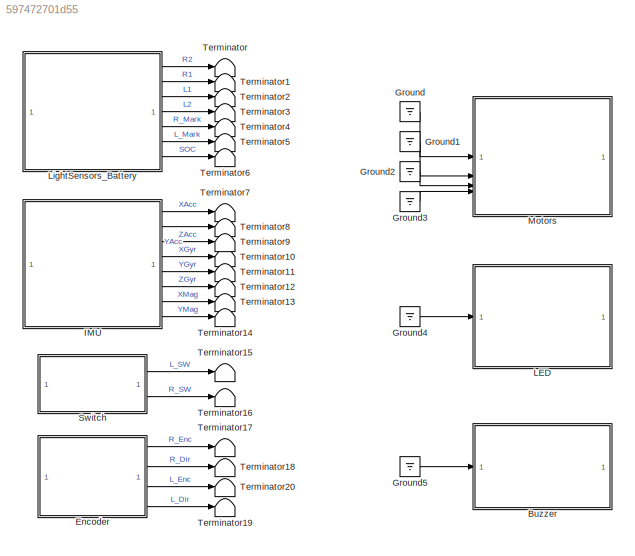
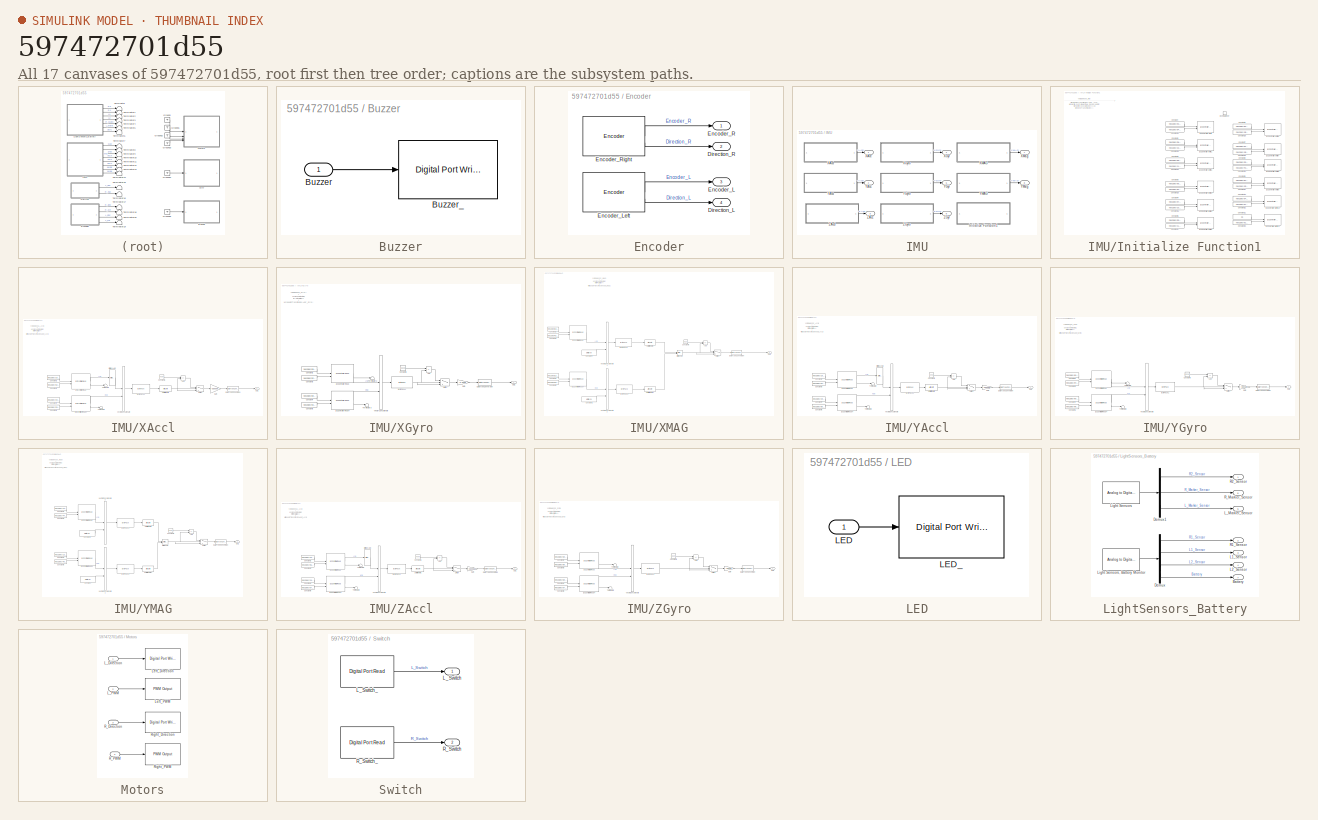
[diagram: thumbnail index - all 17 canvases of the model, root first then tree order]
MODEL slx_597472701d55
KIND model
CONFIG AbsTol = auto
CONFIG EnableMultiTasking = on
CONFIG FixedStep = auto
CONFIG MaxStep = auto
CONFIG MinStep = auto
CONFIG RelTol = 1e-3
CONFIG SampleTimeConstraint = Unconstrained
CONFIG SolverName = FixedStepAuto
CONFIG StartTime = 0.0
CONFIG StopTime = inf
BLOCK [SubSystem] Buzzer
BLOCK [Inport] Buzzer/Buzzer
BLOCK [Reference] Buzzer/Buzzer_  REF=stm32f4xxblockslib/Digital Port Write
  LibrarySourceBlock = stm32f3xxblockslib/Digital Port Write
  SourceBlock = stm32f4xxblockslib/Digital Port Write
  SourceType = stm32cube.blocks.DigitalPortWrite
BLOCK [SubSystem] Encoder
BLOCK [Outport] Encoder/Direction_L
  Port = 4
BLOCK [Outport] Encoder/Direction_R
  Port = 2
BLOCK [Outport] Encoder/Encoder_L
  Port = 3
BLOCK [Reference] Encoder/Encoder_Left  REF=stm32blockslib/Encoder
  LibrarySourceBlock = stm32f3xxblockslib/Encoder
  SourceBlock = stm32blockslib/Encoder
  SourceType = stm32cube.blocks.EncoderBlock
BLOCK [Outport] Encoder/Encoder_R
BLOCK [Reference] Encoder/Encoder_Right  REF=stm32blockslib/Encoder
  LibrarySourceBlock = stm32f3xxblockslib/Encoder
  SourceBlock = stm32blockslib/Encoder
  SourceType = stm32cube.blocks.EncoderBlock
BLOCK [Ground] Ground
BLOCK [Ground] Ground1
BLOCK [Ground] Ground2
BLOCK [Ground] Ground3
BLOCK [Ground] Ground4
BLOCK [Ground] Ground5
BLOCK [SubSystem] IMU
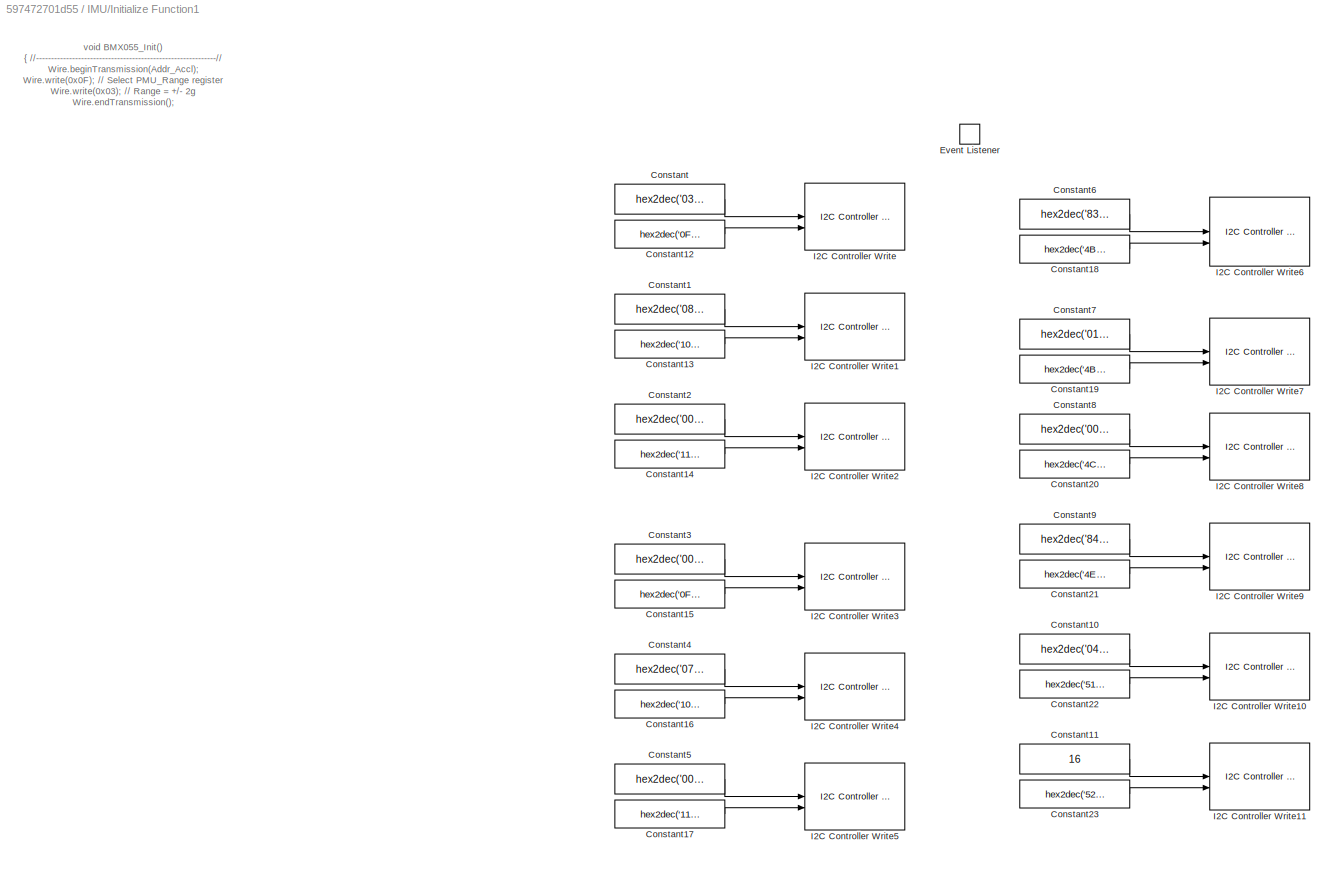
BLOCK [SubSystem] IMU/Initialize Function1
  TreatAsAtomicUnit = on
BLOCK [Constant] IMU/Initialize Function1/Constant
  OutDataTypeStr = uint8
  Value = hex2dec('03')
  VectorParams1D = off
BLOCK [Constant] IMU/Initialize Function1/Constant1
  OutDataTypeStr = uint8
  Value = hex2dec('08')
  VectorParams1D = off
BLOCK [Constant] IMU/Initialize Function1/Constant10
  OutDataTypeStr = uint8
  Value = hex2dec('04')
  VectorParams1D = off
BLOCK [Constant] IMU/Initialize Function1/Constant11
  OutDataTypeStr = uint8
  Value = 16
  VectorParams1D = off
BLOCK [Constant] IMU/Initialize Function1/Constant12
  OutDataTypeStr = uint8
  Value = hex2dec('0F')
BLOCK [Constant] IMU/Initialize Function1/Constant13
  OutDataTypeStr = uint8
  Value = hex2dec('10')
BLOCK [Constant] IMU/Initialize Function1/Constant14
  OutDataTypeStr = uint8
  Value = hex2dec('11')
BLOCK [Constant] IMU/Initialize Function1/Constant15
  OutDataTypeStr = uint8
  Value = hex2dec('0F')
BLOCK [Constant] IMU/Initialize Function1/Constant16
  OutDataTypeStr = uint8
  Value = hex2dec('10')
BLOCK [Constant] IMU/Initialize Function1/Constant17
  OutDataTypeStr = uint8
  Value = hex2dec('11')
BLOCK [Constant] IMU/Initialize Function1/Constant18
  OutDataTypeStr = uint8
  Value = hex2dec('4B')
BLOCK [Constant] IMU/Initialize Function1/Constant19
  OutDataTypeStr = uint8
  Value = hex2dec('4B')
BLOCK [Constant] IMU/Initialize Function1/Constant2
  OutDataTypeStr = uint8
  Value = hex2dec('00')
  VectorParams1D = off
BLOCK [Constant] IMU/Initialize Function1/Constant20
  OutDataTypeStr = uint8
  Value = hex2dec('4C')
BLOCK [Constant] IMU/Initialize Function1/Constant21
  OutDataTypeStr = uint8
  Value = hex2dec('4E')
BLOCK [Constant] IMU/Initialize Function1/Constant22
  OutDataTypeStr = uint8
  Value = hex2dec('51')
BLOCK [Constant] IMU/Initialize Function1/Constant23
  OutDataTypeStr = uint8
  Value = hex2dec('52')
BLOCK [Constant] IMU/Initialize Function1/Constant3
  OutDataTypeStr = uint8
  Value = hex2dec('00')
  VectorParams1D = off
BLOCK [Constant] IMU/Initialize Function1/Constant4
  OutDataTypeStr = uint8
  Value = hex2dec('07')
  VectorParams1D = off
BLOCK [Constant] IMU/Initialize Function1/Constant5
  OutDataTypeStr = uint8
  Value = hex2dec('00')
  VectorParams1D = off
BLOCK [Constant] IMU/Initialize Function1/Constant6
  OutDataTypeStr = uint8
  Value = hex2dec('83')
  VectorParams1D = off
BLOCK [Constant] IMU/Initialize Function1/Constant7
  OutDataTypeStr = uint8
  Value = hex2dec('01')
  VectorParams1D = off
BLOCK [Constant] IMU/Initialize Function1/Constant8
  OutDataTypeStr = uint8
  Value = hex2dec('00')
  VectorParams1D = off
BLOCK [Constant] IMU/Initialize Function1/Constant9
  OutDataTypeStr = uint8
  Value = hex2dec('84')
  VectorParams1D = off
BLOCK [EventListener] IMU/Initialize Function1/Event Listener
  DisableCoverage = on
  EventName = reset
BLOCK [Reference] IMU/Initialize Function1/I2C Controller Write  REF=stm32blockslib/I2C Controller Write
  LibrarySourceBlock = stm32f4xxblockslib/I2C Controller Write
  SourceBlock = stm32blockslib/I2C Controller Write
  SourceType = stm32cube.blocks.I2CControllerWrite
BLOCK [Reference] IMU/Initialize Function1/I2C Controller Write1  REF=stm32blockslib/I2C Controller Write
  LibrarySourceBlock = stm32f4xxblockslib/I2C Controller Write
  SourceBlock = stm32blockslib/I2C Controller Write
  SourceType = stm32cube.blocks.I2CControllerWrite
BLOCK [Reference] IMU/Initialize Function1/I2C Controller Write10  REF=stm32blockslib/I2C Controller Write
  LibrarySourceBlock = stm32f4xxblockslib/I2C Controller Write
  SourceBlock = stm32blockslib/I2C Controller Write
  SourceType = stm32cube.blocks.I2CControllerWrite
BLOCK [Reference] IMU/Initialize Function1/I2C Controller Write11  REF=stm32blockslib/I2C Controller Write
  LibrarySourceBlock = stm32f4xxblockslib/I2C Controller Write
  SourceBlock = stm32blockslib/I2C Controller Write
  SourceType = stm32cube.blocks.I2CControllerWrite
BLOCK [Reference] IMU/Initialize Function1/I2C Controller Write2  REF=stm32blockslib/I2C Controller Write
  LibrarySourceBlock = stm32f4xxblockslib/I2C Controller Write
  SourceBlock = stm32blockslib/I2C Controller Write
  SourceType = stm32cube.blocks.I2CControllerWrite
BLOCK [Reference] IMU/Initialize Function1/I2C Controller Write3  REF=stm32blockslib/I2C Controller Write
  LibrarySourceBlock = stm32f4xxblockslib/I2C Controller Write
  SourceBlock = stm32blockslib/I2C Controller Write
  SourceType = stm32cube.blocks.I2CControllerWrite
BLOCK [Reference] IMU/Initialize Function1/I2C Controller Write4  REF=stm32blockslib/I2C Controller Write
  LibrarySourceBlock = stm32f4xxblockslib/I2C Controller Write
  SourceBlock = stm32blockslib/I2C Controller Write
  SourceType = stm32cube.blocks.I2CControllerWrite
BLOCK [Reference] IMU/Initialize Function1/I2C Controller Write5  REF=stm32blockslib/I2C Controller Write
  LibrarySourceBlock = stm32f4xxblockslib/I2C Controller Write
  SourceBlock = stm32blockslib/I2C Controller Write
  SourceType = stm32cube.blocks.I2CControllerWrite
BLOCK [Reference] IMU/Initialize Function1/I2C Controller Write6  REF=stm32blockslib/I2C Controller Write
  LibrarySourceBlock = stm32f4xxblockslib/I2C Controller Write
  SourceBlock = stm32blockslib/I2C Controller Write
  SourceType = stm32cube.blocks.I2CControllerWrite
BLOCK [Reference] IMU/Initialize Function1/I2C Controller Write7  REF=stm32blockslib/I2C Controller Write
  LibrarySourceBlock = stm32f4xxblockslib/I2C Controller Write
  SourceBlock = stm32blockslib/I2C Controller Write
  SourceType = stm32cube.blocks.I2CControllerWrite
BLOCK [Reference] IMU/Initialize Function1/I2C Controller Write8  REF=stm32blockslib/I2C Controller Write
  LibrarySourceBlock = stm32f4xxblockslib/I2C Controller Write
  SourceBlock = stm32blockslib/I2C Controller Write
  SourceType = stm32cube.blocks.I2CControllerWrite
BLOCK [Reference] IMU/Initialize Function1/I2C Controller Write9  REF=stm32blockslib/I2C Controller Write
  LibrarySourceBlock = stm32f4xxblockslib/I2C Controller Write
  SourceBlock = stm32blockslib/I2C Controller Write
  SourceType = stm32cube.blocks.I2CControllerWrite
BLOCK [Outport] IMU/XAcc
BLOCK [SubSystem] IMU/XAccl
BLOCK [Sum] IMU/XAccl/Add
  IconShape = rectangular
  Inputs = -+
BLOCK [Reference] IMU/XAccl/Bitwise AND  REF=simulink/Logic and Bit
Operations/Bitwise
Operator
  LibrarySourceBlock = simulink/Quick Insert/Logic and Bit\nOperations/Bitwise AND
  SourceBlock = simulink/Logic and Bit\nOperations/Bitwise\nOperator
  SourceType = Bitwise Operator
BLOCK [Reference] IMU/XAccl/Byte Pack1  REF=svdutilitieslib/Byte Pack
  LibrarySourceBlock = mcblib/Signal Management/Byte Pack
  SourceBlock = svdutilitieslib/Byte Pack
  SourceType = Byte pack
BLOCK [Constant] IMU/XAccl/Constant2
  OutDataTypeStr = uint8
  Value = hex2dec('19')
BLOCK [Constant] IMU/XAccl/Constant3
  OutDataTypeStr = uint8
  Value = hex2dec('02')
BLOCK [Constant] IMU/XAccl/Constant4
  OutDataTypeStr = uint8
  Value = hex2dec('19')
BLOCK [Constant] IMU/XAccl/Constant5
  OutDataTypeStr = uint8
  Value = hex2dec('03')
BLOCK [Constant] IMU/XAccl/Constant6
  Value = 4096
BLOCK [DataTypeConversion] IMU/XAccl/Data Type Conversion
  OutDataTypeStr = double
  RndMeth = Floor
  SaturateOnIntegerOverflow = off
BLOCK [Gain] IMU/XAccl/Gain
  Gain = -0.00098
BLOCK [Reference] IMU/XAccl/I2C Controller Read  REF=stm32blockslib/I2C Controller Read
  LibrarySourceBlock = stm32f4xxblockslib/I2C Controller Read
  SourceBlock = stm32blockslib/I2C Controller Read
  SourceType = stm32cube.blocks.I2CControllerRead
BLOCK [Reference] IMU/XAccl/I2C Controller Read4  REF=stm32blockslib/I2C Controller Read
  LibrarySourceBlock = stm32f4xxblockslib/I2C Controller Read
  SourceBlock = stm32blockslib/I2C Controller Read
  SourceType = stm32cube.blocks.I2CControllerRead
BLOCK [Outport] IMU/XAccl/Out1
BLOCK [ArithShift] IMU/XAccl/Shift Arithmetic
  BitShiftDirection = Right
  BitShiftNumber = 4
  InputPortMap = u0
BLOCK [Switch] IMU/XAccl/Switch
  Criteria = u2 > Threshold
  InputSameDT = off
  SaturateOnIntegerOverflow = off
  Threshold = 2047
BLOCK [Terminator] IMU/XAccl/Terminator2
BLOCK [Terminator] IMU/XAccl/Terminator3
BLOCK [Concatenate] IMU/XAccl/Vector Concatenate
BLOCK [Outport] IMU/XGyr
  Port = 4
BLOCK [SubSystem] IMU/XGyro
BLOCK [Sum] IMU/XGyro/Add
  IconShape = rectangular
  Inputs = -+
BLOCK [Reference] IMU/XGyro/Byte Pack1  REF=svdutilitieslib/Byte Pack
  LibrarySourceBlock = mcblib/Signal Management/Byte Pack
  SourceBlock = svdutilitieslib/Byte Pack
  SourceType = Byte pack
BLOCK [Constant] IMU/XGyro/Constant2
  OutDataTypeStr = uint8
  Value = hex2dec('69')
BLOCK [Constant] IMU/XGyro/Constant3
  OutDataTypeStr = uint8
  Value = hex2dec('02')
BLOCK [Constant] IMU/XGyro/Constant4
  OutDataTypeStr = uint8
  Value = hex2dec('69')
BLOCK [Constant] IMU/XGyro/Constant5
  OutDataTypeStr = uint8
  Value = hex2dec('03')
BLOCK [Constant] IMU/XGyro/Constant6
  Value = 65536
BLOCK [DataTypeConversion] IMU/XGyro/Data Type Conversion
  OutDataTypeStr = double
  RndMeth = Floor
  SaturateOnIntegerOverflow = off
BLOCK [Gain] IMU/XGyro/Gain
  Gain = -0.0038
BLOCK [Reference] IMU/XGyro/I2C Controller Read  REF=stm32blockslib/I2C Controller Read
  LibrarySourceBlock = stm32f4xxblockslib/I2C Controller Read
  SourceBlock = stm32blockslib/I2C Controller Read
  SourceType = stm32cube.blocks.I2CControllerRead
BLOCK [Reference] IMU/XGyro/I2C Controller Read4  REF=stm32blockslib/I2C Controller Read
  LibrarySourceBlock = stm32f4xxblockslib/I2C Controller Read
  SourceBlock = stm32blockslib/I2C Controller Read
  SourceType = stm32cube.blocks.I2CControllerRead
BLOCK [Outport] IMU/XGyro/Out1
BLOCK [Switch] IMU/XGyro/Switch
  Criteria = u2 > Threshold
  InputSameDT = off
  SaturateOnIntegerOverflow = off
  Threshold = 32767
BLOCK [Terminator] IMU/XGyro/Terminator2
BLOCK [Terminator] IMU/XGyro/Terminator3
BLOCK [Concatenate] IMU/XGyro/Vector Concatenate
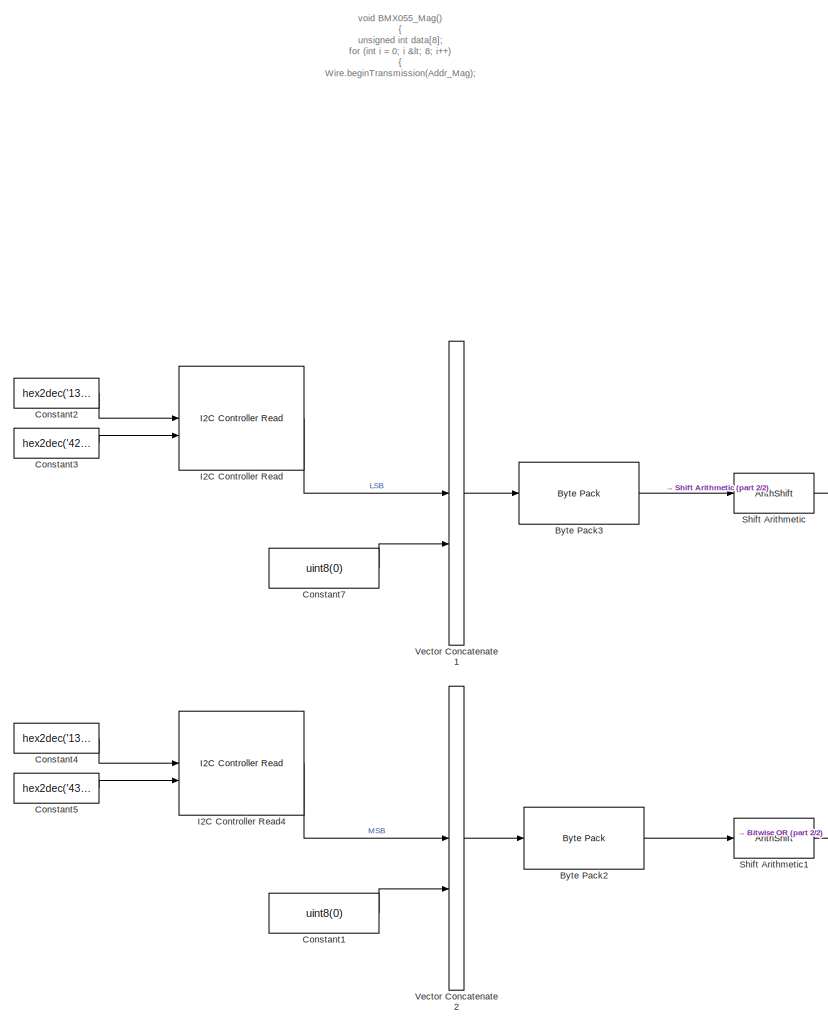
[diagram: IMU/XMAG - part 1/2, left side, full height]
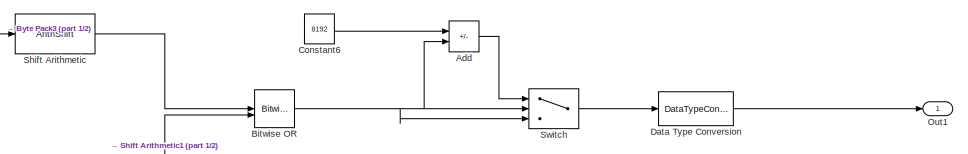
[diagram: IMU/XMAG - part 2/2, middle right region]
BLOCK [SubSystem] IMU/XMAG
BLOCK [Sum] IMU/XMAG/Add
  IconShape = rectangular
  Inputs = -+
BLOCK [Reference] IMU/XMAG/Bitwise OR  REF=simulink/Logic and Bit
Operations/Bitwise
Operator
  LibrarySourceBlock = simulink/Quick Insert/Logic and Bit\nOperations/Bitwise OR
  SourceBlock = simulink/Logic and Bit\nOperations/Bitwise\nOperator
  SourceType = Bitwise Operator
BLOCK [Reference] IMU/XMAG/Byte Pack2  REF=svdutilitieslib/Byte Pack
  LibrarySourceBlock = mcblib/Signal Management/Byte Pack
  SourceBlock = svdutilitieslib/Byte Pack
  SourceType = Byte pack
BLOCK [Reference] IMU/XMAG/Byte Pack3  REF=svdutilitieslib/Byte Pack
  LibrarySourceBlock = mcblib/Signal Management/Byte Pack
  SourceBlock = svdutilitieslib/Byte Pack
  SourceType = Byte pack
BLOCK [Constant] IMU/XMAG/Constant1
  Value = uint8(0)
BLOCK [Constant] IMU/XMAG/Constant2
  OutDataTypeStr = uint8
  Value = hex2dec('13')
BLOCK [Constant] IMU/XMAG/Constant3
  OutDataTypeStr = uint8
  Value = hex2dec('42')
BLOCK [Constant] IMU/XMAG/Constant4
  OutDataTypeStr = uint8
  Value = hex2dec('13')
BLOCK [Constant] IMU/XMAG/Constant5
  OutDataTypeStr = uint8
  Value = hex2dec('43')
BLOCK [Constant] IMU/XMAG/Constant6
  Value = 8192
BLOCK [Constant] IMU/XMAG/Constant7
  Value = uint8(0)
BLOCK [DataTypeConversion] IMU/XMAG/Data Type Conversion
  OutDataTypeStr = double
  RndMeth = Floor
  SaturateOnIntegerOverflow = off
BLOCK [Reference] IMU/XMAG/I2C Controller Read  REF=stm32blockslib/I2C Controller Read
  LibrarySourceBlock = stm32f4xxblockslib/I2C Controller Read
  SourceBlock = stm32blockslib/I2C Controller Read
  SourceType = stm32cube.blocks.I2CControllerRead
BLOCK [Reference] IMU/XMAG/I2C Controller Read4  REF=stm32blockslib/I2C Controller Read
  LibrarySourceBlock = stm32f4xxblockslib/I2C Controller Read
  SourceBlock = stm32blockslib/I2C Controller Read
  SourceType = stm32cube.blocks.I2CControllerRead
BLOCK [Outport] IMU/XMAG/Out1
BLOCK [ArithShift] IMU/XMAG/Shift Arithmetic
  BitShiftDirection = Right
  BitShiftNumber = 3
  InputPortMap = u0
BLOCK [ArithShift] IMU/XMAG/Shift Arithmetic1
  BitShiftDirection = Left
  BitShiftNumber = 5
  InputPortMap = u0
BLOCK [Switch] IMU/XMAG/Switch
  Criteria = u2 > Threshold
  InputSameDT = off
  SaturateOnIntegerOverflow = off
  Threshold = 4095
BLOCK [Concatenate] IMU/XMAG/Vector Concatenate1
BLOCK [Concatenate] IMU/XMAG/Vector Concatenate2
BLOCK [Outport] IMU/XMag
  Port = 7
BLOCK [Outport] IMU/YAcc
  Port = 2
BLOCK [SubSystem] IMU/YAccl
BLOCK [Sum] IMU/YAccl/Add
  IconShape = rectangular
  Inputs = -+
BLOCK [Reference] IMU/YAccl/Bitwise AND  REF=simulink/Logic and Bit
Operations/Bitwise
Operator
  LibrarySourceBlock = simulink/Quick Insert/Logic and Bit\nOperations/Bitwise AND
  SourceBlock = simulink/Logic and Bit\nOperations/Bitwise\nOperator
  SourceType = Bitwise Operator
BLOCK [Reference] IMU/YAccl/Byte Pack1  REF=svdutilitieslib/Byte Pack
  LibrarySourceBlock = mcblib/Signal Management/Byte Pack
  SourceBlock = svdutilitieslib/Byte Pack
  SourceType = Byte pack
BLOCK [Constant] IMU/YAccl/Constant2
  OutDataTypeStr = uint8
  Value = hex2dec('19')
BLOCK [Constant] IMU/YAccl/Constant3
  OutDataTypeStr = uint8
  Value = hex2dec('04')
BLOCK [Constant] IMU/YAccl/Constant4
  OutDataTypeStr = uint8
  Value = hex2dec('19')
BLOCK [Constant] IMU/YAccl/Constant5
  OutDataTypeStr = uint8
  Value = hex2dec('05')
BLOCK [Constant] IMU/YAccl/Constant6
  Value = 4096
BLOCK [DataTypeConversion] IMU/YAccl/Data Type Conversion
  OutDataTypeStr = double
  RndMeth = Floor
  SaturateOnIntegerOverflow = off
BLOCK [Gain] IMU/YAccl/Gain
  Gain = -0.00098
BLOCK [Reference] IMU/YAccl/I2C Controller Read  REF=stm32blockslib/I2C Controller Read
  LibrarySourceBlock = stm32f4xxblockslib/I2C Controller Read
  SourceBlock = stm32blockslib/I2C Controller Read
  SourceType = stm32cube.blocks.I2CControllerRead
BLOCK [Reference] IMU/YAccl/I2C Controller Read4  REF=stm32blockslib/I2C Controller Read
  LibrarySourceBlock = stm32f4xxblockslib/I2C Controller Read
  SourceBlock = stm32blockslib/I2C Controller Read
  SourceType = stm32cube.blocks.I2CControllerRead
BLOCK [Outport] IMU/YAccl/Out1
BLOCK [ArithShift] IMU/YAccl/Shift Arithmetic
  BitShiftDirection = Right
  BitShiftNumber = 4
  InputPortMap = u0
BLOCK [Switch] IMU/YAccl/Switch
  Criteria = u2 > Threshold
  InputSameDT = off
  SaturateOnIntegerOverflow = off
  Threshold = 2047
BLOCK [Terminator] IMU/YAccl/Terminator2
BLOCK [Terminator] IMU/YAccl/Terminator3
BLOCK [Concatenate] IMU/YAccl/Vector Concatenate
BLOCK [Outport] IMU/YGyr
  Port = 5
BLOCK [SubSystem] IMU/YGyro
BLOCK [Sum] IMU/YGyro/Add
  IconShape = rectangular
  Inputs = -+
BLOCK [Reference] IMU/YGyro/Byte Pack1  REF=svdutilitieslib/Byte Pack
  LibrarySourceBlock = mcblib/Signal Management/Byte Pack
  SourceBlock = svdutilitieslib/Byte Pack
  SourceType = Byte pack
BLOCK [Constant] IMU/YGyro/Constant2
  OutDataTypeStr = uint8
  Value = hex2dec('69')
BLOCK [Constant] IMU/YGyro/Constant3
  OutDataTypeStr = uint8
  Value = hex2dec('04')
BLOCK [Constant] IMU/YGyro/Constant4
  OutDataTypeStr = uint8
  Value = hex2dec('69')
BLOCK [Constant] IMU/YGyro/Constant5
  OutDataTypeStr = uint8
  Value = hex2dec('05')
BLOCK [Constant] IMU/YGyro/Constant6
  Value = 65536
BLOCK [DataTypeConversion] IMU/YGyro/Data Type Conversion
  OutDataTypeStr = double
  RndMeth = Floor
  SaturateOnIntegerOverflow = off
BLOCK [Gain] IMU/YGyro/Gain
  Gain = -0.0038
BLOCK [Reference] IMU/YGyro/I2C Controller Read  REF=stm32blockslib/I2C Controller Read
  LibrarySourceBlock = stm32f4xxblockslib/I2C Controller Read
  SourceBlock = stm32blockslib/I2C Controller Read
  SourceType = stm32cube.blocks.I2CControllerRead
BLOCK [Reference] IMU/YGyro/I2C Controller Read4  REF=stm32blockslib/I2C Controller Read
  LibrarySourceBlock = stm32f4xxblockslib/I2C Controller Read
  SourceBlock = stm32blockslib/I2C Controller Read
  SourceType = stm32cube.blocks.I2CControllerRead
BLOCK [Outport] IMU/YGyro/Out1
BLOCK [Switch] IMU/YGyro/Switch
  Criteria = u2 > Threshold
  InputSameDT = off
  SaturateOnIntegerOverflow = off
  Threshold = 32767
BLOCK [Terminator] IMU/YGyro/Terminator2
BLOCK [Terminator] IMU/YGyro/Terminator3
BLOCK [Concatenate] IMU/YGyro/Vector Concatenate
BLOCK [SubSystem] IMU/YMAG
BLOCK [Sum] IMU/YMAG/Add
  IconShape = rectangular
  Inputs = -+
BLOCK [Reference] IMU/YMAG/Bitwise OR  REF=simulink/Logic and Bit
Operations/Bitwise
Operator
  LibrarySourceBlock = simulink/Quick Insert/Logic and Bit\nOperations/Bitwise OR
  SourceBlock = simulink/Logic and Bit\nOperations/Bitwise\nOperator
  SourceType = Bitwise Operator
BLOCK [Reference] IMU/YMAG/Byte Pack1  REF=svdutilitieslib/Byte Pack
  LibrarySourceBlock = mcblib/Signal Management/Byte Pack
  SourceBlock = svdutilitieslib/Byte Pack
  SourceType = Byte pack
BLOCK [Reference] IMU/YMAG/Byte Pack2  REF=svdutilitieslib/Byte Pack
  LibrarySourceBlock = mcblib/Signal Management/Byte Pack
  SourceBlock = svdutilitieslib/Byte Pack
  SourceType = Byte pack
BLOCK [Constant] IMU/YMAG/Constant
  Value = uint8(0)
BLOCK [Constant] IMU/YMAG/Constant1
  Value = uint8(0)
BLOCK [Constant] IMU/YMAG/Constant2
  OutDataTypeStr = uint8
  Value = hex2dec('13')
BLOCK [Constant] IMU/YMAG/Constant3
  OutDataTypeStr = uint8
  Value = hex2dec('44')
BLOCK [Constant] IMU/YMAG/Constant4
  OutDataTypeStr = uint8
  Value = hex2dec('13')
BLOCK [Constant] IMU/YMAG/Constant5
  OutDataTypeStr = uint8
  Value = hex2dec('45')
BLOCK [Constant] IMU/YMAG/Constant6
  Value = 8192
BLOCK [DataTypeConversion] IMU/YMAG/Data Type Conversion
  OutDataTypeStr = double
  RndMeth = Floor
  SaturateOnIntegerOverflow = off
BLOCK [Reference] IMU/YMAG/I2C Controller Read  REF=stm32blockslib/I2C Controller Read
  LibrarySourceBlock = stm32f4xxblockslib/I2C Controller Read
  SourceBlock = stm32blockslib/I2C Controller Read
  SourceType = stm32cube.blocks.I2CControllerRead
BLOCK [Reference] IMU/YMAG/I2C Controller Read4  REF=stm32blockslib/I2C Controller Read
  LibrarySourceBlock = stm32f4xxblockslib/I2C Controller Read
  SourceBlock = stm32blockslib/I2C Controller Read
  SourceType = stm32cube.blocks.I2CControllerRead
BLOCK [Outport] IMU/YMAG/Out1
BLOCK [ArithShift] IMU/YMAG/Shift Arithmetic
  BitShiftDirection = Right
  BitShiftNumber = 3
  InputPortMap = u0
BLOCK [ArithShift] IMU/YMAG/Shift Arithmetic1
  BitShiftDirection = Left
  BitShiftNumber = 5
  InputPortMap = u0
BLOCK [Switch] IMU/YMAG/Switch
  Criteria = u2 > Threshold
  InputSameDT = off
  SaturateOnIntegerOverflow = off
  Threshold = 4095
BLOCK [Concatenate] IMU/YMAG/Vector Concatenate1
BLOCK [Concatenate] IMU/YMAG/Vector Concatenate2
BLOCK [Outport] IMU/YMag
  Port = 8
BLOCK [Outport] IMU/ZAcc
  Port = 3
BLOCK [SubSystem] IMU/ZAccl
BLOCK [Sum] IMU/ZAccl/Add
  IconShape = rectangular
  Inputs = -+
BLOCK [Reference] IMU/ZAccl/Bitwise AND  REF=simulink/Logic and Bit
Operations/Bitwise
Operator
  LibrarySourceBlock = simulink/Quick Insert/Logic and Bit\nOperations/Bitwise AND
  SourceBlock = simulink/Logic and Bit\nOperations/Bitwise\nOperator
  SourceType = Bitwise Operator
BLOCK [Reference] IMU/ZAccl/Byte Pack1  REF=svdutilitieslib/Byte Pack
  LibrarySourceBlock = mcblib/Signal Management/Byte Pack
  SourceBlock = svdutilitieslib/Byte Pack
  SourceType = Byte pack
BLOCK [Constant] IMU/ZAccl/Constant2
  OutDataTypeStr = uint8
  Value = hex2dec('19')
BLOCK [Constant] IMU/ZAccl/Constant3
  OutDataTypeStr = uint8
  Value = hex2dec('06')
BLOCK [Constant] IMU/ZAccl/Constant4
  OutDataTypeStr = uint8
  Value = hex2dec('19')
BLOCK [Constant] IMU/ZAccl/Constant5
  OutDataTypeStr = uint8
  Value = hex2dec('07')
BLOCK [Constant] IMU/ZAccl/Constant6
  Value = 4096
BLOCK [DataTypeConversion] IMU/ZAccl/Data Type Conversion
  OutDataTypeStr = double
  RndMeth = Floor
  SaturateOnIntegerOverflow = off
BLOCK [Gain] IMU/ZAccl/Gain
  Gain = -0.00098
BLOCK [Reference] IMU/ZAccl/I2C Controller Read  REF=stm32blockslib/I2C Controller Read
  LibrarySourceBlock = stm32f4xxblockslib/I2C Controller Read
  SourceBlock = stm32blockslib/I2C Controller Read
  SourceType = stm32cube.blocks.I2CControllerRead
BLOCK [Reference] IMU/ZAccl/I2C Controller Read4  REF=stm32blockslib/I2C Controller Read
  LibrarySourceBlock = stm32f4xxblockslib/I2C Controller Read
  SourceBlock = stm32blockslib/I2C Controller Read
  SourceType = stm32cube.blocks.I2CControllerRead
BLOCK [Outport] IMU/ZAccl/Out1
BLOCK [ArithShift] IMU/ZAccl/Shift Arithmetic
  BitShiftDirection = Right
  BitShiftNumber = 4
  InputPortMap = u0
BLOCK [Switch] IMU/ZAccl/Switch
  Criteria = u2 > Threshold
  InputSameDT = off
  SaturateOnIntegerOverflow = off
  Threshold = 2047
BLOCK [Terminator] IMU/ZAccl/Terminator2
BLOCK [Terminator] IMU/ZAccl/Terminator3
BLOCK [Concatenate] IMU/ZAccl/Vector Concatenate
BLOCK [Outport] IMU/ZGyr
  Port = 6
BLOCK [SubSystem] IMU/ZGyro
BLOCK [Sum] IMU/ZGyro/Add
  IconShape = rectangular
  Inputs = -+
BLOCK [Reference] IMU/ZGyro/Byte Pack1  REF=svdutilitieslib/Byte Pack
  LibrarySourceBlock = mcblib/Signal Management/Byte Pack
  SourceBlock = svdutilitieslib/Byte Pack
  SourceType = Byte pack
BLOCK [Constant] IMU/ZGyro/Constant2
  OutDataTypeStr = uint8
  Value = hex2dec('69')
BLOCK [Constant] IMU/ZGyro/Constant3
  OutDataTypeStr = uint8
  Value = hex2dec('06')
BLOCK [Constant] IMU/ZGyro/Constant4
  OutDataTypeStr = uint8
  Value = hex2dec('69')
BLOCK [Constant] IMU/ZGyro/Constant5
  OutDataTypeStr = uint8
  Value = hex2dec('07')
BLOCK [Constant] IMU/ZGyro/Constant6
  Value = 65536
BLOCK [DataTypeConversion] IMU/ZGyro/Data Type Conversion
  OutDataTypeStr = double
  RndMeth = Floor
  SaturateOnIntegerOverflow = off
BLOCK [Gain] IMU/ZGyro/Gain
  Gain = -0.0038
BLOCK [Reference] IMU/ZGyro/I2C Controller Read  REF=stm32blockslib/I2C Controller Read
  LibrarySourceBlock = stm32f4xxblockslib/I2C Controller Read
  SourceBlock = stm32blockslib/I2C Controller Read
  SourceType = stm32cube.blocks.I2CControllerRead
BLOCK [Reference] IMU/ZGyro/I2C Controller Read4  REF=stm32blockslib/I2C Controller Read
  LibrarySourceBlock = stm32f4xxblockslib/I2C Controller Read
  SourceBlock = stm32blockslib/I2C Controller Read
  SourceType = stm32cube.blocks.I2CControllerRead
BLOCK [Outport] IMU/ZGyro/Out1
BLOCK [Switch] IMU/ZGyro/Switch
  Criteria = u2 > Threshold
  InputSameDT = off
  SaturateOnIntegerOverflow = off
  Threshold = 32767
BLOCK [Terminator] IMU/ZGyro/Terminator2
BLOCK [Terminator] IMU/ZGyro/Terminator3
BLOCK [Concatenate] IMU/ZGyro/Vector Concatenate
BLOCK [SubSystem] LED
BLOCK [Inport] LED/LED
BLOCK [Reference] LED/LED_  REF=stm32f4xxblockslib/Digital Port Write
  LibrarySourceBlock = stm32f3xxblockslib/Digital Port Write
  SourceBlock = stm32f4xxblockslib/Digital Port Write
  SourceType = stm32cube.blocks.DigitalPortWrite
BLOCK [SubSystem] LightSensors_Battery
BLOCK [Outport] LightSensors_Battery/Battery
  Port = 7
BLOCK [Demux] LightSensors_Battery/Demux
BLOCK [Demux] LightSensors_Battery/Demux1
  Outputs = 3
BLOCK [Outport] LightSensors_Battery/L1_Sensor
  Port = 3
BLOCK [Outport] LightSensors_Battery/L2_Sensor
  Port = 4
BLOCK [Outport] LightSensors_Battery/L_Marker_Sensor
  Port = 6
BLOCK [Reference] LightSensors_Battery/Light Sensors  REF=stm32f4xxblockslib/Analog to Digital Converter
  LibrarySourceBlock = stm32f3xxblockslib/Analog to Digital Converter
  SourceBlock = stm32f4xxblockslib/Analog to Digital Converter
  SourceType = stm32cube.blocks.AnalogInput
BLOCK [Reference] LightSensors_Battery/Light Sensors, Battery Monitor  REF=stm32f4xxblockslib/Analog to Digital Converter
  LibrarySourceBlock = stm32f3xxblockslib/Analog to Digital Converter
  SourceBlock = stm32f4xxblockslib/Analog to Digital Converter
  SourceType = stm32cube.blocks.AnalogInput
BLOCK [Outport] LightSensors_Battery/R1_Sensor
  Port = 2
BLOCK [Outport] LightSensors_Battery/R2_Sensor
BLOCK [Outport] LightSensors_Battery/R_Marker_Sensor
  Port = 5
BLOCK [SubSystem] Motors
BLOCK [Inport] Motors/L_Direction
BLOCK [Inport] Motors/L_PWM
  Port = 2
BLOCK [Reference] Motors/Left_Direction  REF=stm32f4xxblockslib/Digital Port Write
  LibrarySourceBlock = stm32f3xxblockslib/Digital Port Write
  SourceBlock = stm32f4xxblockslib/Digital Port Write
  SourceType = stm32cube.blocks.DigitalPortWrite
BLOCK [Reference] Motors/Left_PWM  REF=stm32f4xxblockslib/PWM Output
  LibrarySourceBlock = stm32f3xxblockslib/PWM Output
  SourceBlock = stm32f4xxblockslib/PWM Output
  SourceType = stm32cube.blocks.PWMOutput
BLOCK [Inport] Motors/R_Direction
  Port = 3
BLOCK [Inport] Motors/R_PWM
  Port = 4
BLOCK [Reference] Motors/Right_Direction  REF=stm32f4xxblockslib/Digital Port Write
  LibrarySourceBlock = stm32f3xxblockslib/Digital Port Write
  SourceBlock = stm32f4xxblockslib/Digital Port Write
  SourceType = stm32cube.blocks.DigitalPortWrite
BLOCK [Reference] Motors/Right_PWM  REF=stm32f4xxblockslib/PWM Output
  LibrarySourceBlock = stm32f3xxblockslib/PWM Output
  SourceBlock = stm32f4xxblockslib/PWM Output
  SourceType = stm32cube.blocks.PWMOutput
BLOCK [SubSystem] Switch
BLOCK [Outport] Switch/L_Switch
BLOCK [Reference] Switch/L_Switch_  REF=stm32f4xxblockslib/Digital Port Read
  LibrarySourceBlock = stm32f3xxblockslib/Digital Port Read
  SourceBlock = stm32f4xxblockslib/Digital Port Read
  SourceType = stm32cube.blocks.DigitalPortRead
BLOCK [Outport] Switch/R_Switch
  Port = 2
BLOCK [Reference] Switch/R_Switch_  REF=stm32f4xxblockslib/Digital Port Read
  LibrarySourceBlock = stm32f3xxblockslib/Digital Port Read
  SourceBlock = stm32f4xxblockslib/Digital Port Read
  SourceType = stm32cube.blocks.DigitalPortRead
BLOCK [Terminator] Terminator
BLOCK [Terminator] Terminator1
BLOCK [Terminator] Terminator10
BLOCK [Terminator] Terminator11
BLOCK [Terminator] Terminator12
BLOCK [Terminator] Terminator13
BLOCK [Terminator] Terminator14
BLOCK [Terminator] Terminator15
BLOCK [Terminator] Terminator16
BLOCK [Terminator] Terminator17
BLOCK [Terminator] Terminator18
BLOCK [Terminator] Terminator19
BLOCK [Terminator] Terminator2
BLOCK [Terminator] Terminator20
BLOCK [Terminator] Terminator3
BLOCK [Terminator] Terminator4
BLOCK [Terminator] Terminator5
BLOCK [Terminator] Terminator6
BLOCK [Terminator] Terminator7
BLOCK [Terminator] Terminator8
BLOCK [Terminator] Terminator9
ANNOTATION IMU/Initialize Function1: void BMX055_Init() { //------------------------------------------------------------// Wire.beginTransmission(Addr_Accl); Wire.write(0x0F); // Select PMU_Range register Wire.write(0x03); // Range = +/- 2g Wire.endTransmission(); delay(100); //------------------------------------------------------------// Wire.beginTransmission(Addr_Accl); Wire.write(0x10); // Select PMU_BW register Wire.write(0x08)...<+2251ch>
ANNOTATION IMU/XAccl: void BMX055_Accl() { unsigned int data[6]; for (int i = 0; i < 6; i++) { Wire.beginTransmission(Addr_Accl); Wire.write((2 + i));// Select data register Wire.endTransmission(); Wire.requestFrom(Addr_Accl, 1);// Request 1 byte of data // Read 6 bytes of data // xAccl lsb, xAccl msb, yAccl lsb, yAccl msb, zAccl lsb, zAccl msb if (Wire.available() == 1) data[i] = Wire.read(); } // Convert the data to ...<+135ch>
ANNOTATION IMU/XGyro: void BMX055_Gyro() { unsigned int data[6]; for (int i = 0; i < 6; i++) { Wire.beginTransmission(Addr_Gyro); Wire.write((2 + i)); // Select data register Wire.endTransmission(); Wire.requestFrom(Addr_Gyro, 1); // Request 1 byte of data // Read 6 bytes of data // xGyro lsb, xGyro msb, yGyro lsb, yGyro msb, zGyro lsb, zGyro msb if (Wire.available() == 1) data[i] = Wire.read(); } // Convert the data x...<+70ch>
ANNOTATION IMU/XMAG: void BMX055_Mag() { unsigned int data[8]; for (int i = 0; i < 8; i++) { Wire.beginTransmission(Addr_Mag); Wire.write((0x42 + i)); // Select data register Wire.endTransmission(); Wire.requestFrom(Addr_Mag, 1); // Request 1 byte of data // Read 6 bytes of data // xMag lsb, xMag msb, yMag lsb, yMag msb, zMag lsb, zMag msb if (Wire.available() == 1) data[i] = Wire.read(); } // Convert the data xMag = ...<+64ch>
ANNOTATION IMU/YAccl: void BMX055_Accl() { unsigned int data[6]; for (int i = 0; i < 6; i++) { Wire.beginTransmission(Addr_Accl); Wire.write((2 + i));// Select data register Wire.endTransmission(); Wire.requestFrom(Addr_Accl, 1);// Request 1 byte of data // Read 6 bytes of data // xAccl lsb, xAccl msb, yAccl lsb, yAccl msb, zAccl lsb, zAccl msb if (Wire.available() == 1) data[i] = Wire.read(); } // Convert the data to ...<+135ch>
ANNOTATION IMU/YGyro: void BMX055_Gyro() { unsigned int data[6]; for (int i = 0; i < 6; i++) { Wire.beginTransmission(Addr_Gyro); Wire.write((2 + i)); // Select data register Wire.endTransmission(); Wire.requestFrom(Addr_Gyro, 1); // Request 1 byte of data // Read 6 bytes of data // xGyro lsb, xGyro msb, yGyro lsb, yGyro msb, zGyro lsb, zGyro msb if (Wire.available() == 1) data[i] = Wire.read(); } // Convert the data y...<+127ch>
ANNOTATION IMU/YMAG: void BMX055_Mag() { unsigned int data[8]; for (int i = 0; i < 8; i++) { Wire.beginTransmission(Addr_Mag); Wire.write((0x42 + i)); // Select data register Wire.endTransmission(); Wire.requestFrom(Addr_Mag, 1); // Request 1 byte of data // Read 6 bytes of data // xMag lsb, xMag msb, yMag lsb, yMag msb, zMag lsb, zMag msb if (Wire.available() == 1) data[i] = Wire.read(); } // Convert the data yMag = ...<+64ch>
ANNOTATION IMU/ZAccl: void BMX055_Accl() { unsigned int data[6]; for (int i = 0; i < 6; i++) { Wire.beginTransmission(Addr_Accl); Wire.write((2 + i));// Select data register Wire.endTransmission(); Wire.requestFrom(Addr_Accl, 1);// Request 1 byte of data // Read 6 bytes of data // xAccl lsb, xAccl msb, yAccl lsb, yAccl msb, zAccl lsb, zAccl msb if (Wire.available() == 1) data[i] = Wire.read(); } // Convert the data to ...<+135ch>
ANNOTATION IMU/ZGyro: void BMX055_Gyro() { unsigned int data[6]; for (int i = 0; i < 6; i++) { Wire.beginTransmission(Addr_Gyro); Wire.write((2 + i)); // Select data register Wire.endTransmission(); Wire.requestFrom(Addr_Gyro, 1); // Request 1 byte of data // Read 6 bytes of data // xGyro lsb, xGyro msb, yGyro lsb, yGyro msb, zGyro lsb, zGyro msb if (Wire.available() == 1) data[i] = Wire.read(); } // Convert the data z...<+127ch>
LINE Buzzer/Buzzer:1 -> Buzzer/Buzzer_:1
LINE Encoder/Encoder_Left:1 -> Encoder/Encoder_L:1
LINE Encoder/Encoder_Left:2 -> Encoder/Direction_L:1
LINE Encoder/Encoder_Right:1 -> Encoder/Encoder_R:1
LINE Encoder/Encoder_Right:2 -> Encoder/Direction_R:1
LINE Encoder:1 -> Terminator17:1
LINE Encoder:2 -> Terminator18:1
LINE Encoder:3 -> Terminator20:1
LINE Encoder:4 -> Terminator19:1
LINE Ground1:1 -> Motors:2
LINE Ground2:1 -> Motors:3
LINE Ground3:1 -> Motors:4
LINE Ground4:1 -> LED:1
LINE Ground5:1 -> Buzzer:1
LINE Ground:1 -> Motors:1
LINE IMU/Initialize Function1/Constant10:1 -> IMU/Initialize Function1/I2C Controller Write10:1
LINE IMU/Initialize Function1/Constant11:1 -> IMU/Initialize Function1/I2C Controller Write11:1
LINE IMU/Initialize Function1/Constant12:1 -> IMU/Initialize Function1/I2C Controller Write:2
LINE IMU/Initialize Function1/Constant13:1 -> IMU/Initialize Function1/I2C Controller Write1:2
LINE IMU/Initialize Function1/Constant14:1 -> IMU/Initialize Function1/I2C Controller Write2:2
LINE IMU/Initialize Function1/Constant15:1 -> IMU/Initialize Function1/I2C Controller Write3:2
LINE IMU/Initialize Function1/Constant16:1 -> IMU/Initialize Function1/I2C Controller Write4:2
LINE IMU/Initialize Function1/Constant17:1 -> IMU/Initialize Function1/I2C Controller Write5:2
LINE IMU/Initialize Function1/Constant18:1 -> IMU/Initialize Function1/I2C Controller Write6:2
LINE IMU/Initialize Function1/Constant19:1 -> IMU/Initialize Function1/I2C Controller Write7:2
LINE IMU/Initialize Function1/Constant1:1 -> IMU/Initialize Function1/I2C Controller Write1:1
LINE IMU/Initialize Function1/Constant20:1 -> IMU/Initialize Function1/I2C Controller Write8:2
LINE IMU/Initialize Function1/Constant21:1 -> IMU/Initialize Function1/I2C Controller Write9:2
LINE IMU/Initialize Function1/Constant22:1 -> IMU/Initialize Function1/I2C Controller Write10:2
LINE IMU/Initialize Function1/Constant23:1 -> IMU/Initialize Function1/I2C Controller Write11:2
LINE IMU/Initialize Function1/Constant2:1 -> IMU/Initialize Function1/I2C Controller Write2:1
LINE IMU/Initialize Function1/Constant3:1 -> IMU/Initialize Function1/I2C Controller Write3:1
LINE IMU/Initialize Function1/Constant4:1 -> IMU/Initialize Function1/I2C Controller Write4:1
LINE IMU/Initialize Function1/Constant5:1 -> IMU/Initialize Function1/I2C Controller Write5:1
LINE IMU/Initialize Function1/Constant6:1 -> IMU/Initialize Function1/I2C Controller Write6:1
LINE IMU/Initialize Function1/Constant7:1 -> IMU/Initialize Function1/I2C Controller Write7:1
LINE IMU/Initialize Function1/Constant8:1 -> IMU/Initialize Function1/I2C Controller Write8:1
LINE IMU/Initialize Function1/Constant9:1 -> IMU/Initialize Function1/I2C Controller Write9:1
LINE IMU/Initialize Function1/Constant:1 -> IMU/Initialize Function1/I2C Controller Write:1
LINE IMU/XAccl/Add:1 -> IMU/XAccl/Switch:1
LINE IMU/XAccl/Bitwise AND:1 -> IMU/XAccl/Vector Concatenate:1
LINE IMU/XAccl/Byte Pack1:1 -> IMU/XAccl/Shift Arithmetic:1
LINE IMU/XAccl/Constant2:1 -> IMU/XAccl/I2C Controller Read:1
LINE IMU/XAccl/Constant3:1 -> IMU/XAccl/I2C Controller Read:2
LINE IMU/XAccl/Constant4:1 -> IMU/XAccl/I2C Controller Read4:1
LINE IMU/XAccl/Constant5:1 -> IMU/XAccl/I2C Controller Read4:2
LINE IMU/XAccl/Constant6:1 -> IMU/XAccl/Add:1
LINE IMU/XAccl/Data Type Conversion:1 -> IMU/XAccl/Out1:1
LINE IMU/XAccl/Gain:1 -> IMU/XAccl/Data Type Conversion:1
LINE IMU/XAccl/I2C Controller Read4:1 -> IMU/XAccl/Vector Concatenate:2
LINE IMU/XAccl/I2C Controller Read4:2 -> IMU/XAccl/Terminator3:1
LINE IMU/XAccl/I2C Controller Read:1 -> IMU/XAccl/Bitwise AND:1
LINE IMU/XAccl/I2C Controller Read:2 -> IMU/XAccl/Terminator2:1
NET IMU/XAccl/Shift Arithmetic:1 -> IMU/XAccl/Add:2, IMU/XAccl/Switch:2, IMU/XAccl/Switch:3
LINE IMU/XAccl/Switch:1 -> IMU/XAccl/Gain:1
LINE IMU/XAccl/Vector Concatenate:1 -> IMU/XAccl/Byte Pack1:1
LINE IMU/XAccl:1 -> IMU/XAcc:1
LINE IMU/XGyro/Add:1 -> IMU/XGyro/Switch:1
NET IMU/XGyro/Byte Pack1:1 -> IMU/XGyro/Add:2, IMU/XGyro/Switch:2, IMU/XGyro/Switch:3
LINE IMU/XGyro/Constant2:1 -> IMU/XGyro/I2C Controller Read:1
LINE IMU/XGyro/Constant3:1 -> IMU/XGyro/I2C Controller Read:2
LINE IMU/XGyro/Constant4:1 -> IMU/XGyro/I2C Controller Read4:1
LINE IMU/XGyro/Constant5:1 -> IMU/XGyro/I2C Controller Read4:2
LINE IMU/XGyro/Constant6:1 -> IMU/XGyro/Add:1
LINE IMU/XGyro/Data Type Conversion:1 -> IMU/XGyro/Out1:1
LINE IMU/XGyro/Gain:1 -> IMU/XGyro/Data Type Conversion:1
LINE IMU/XGyro/I2C Controller Read4:1 -> IMU/XGyro/Vector Concatenate:2
LINE IMU/XGyro/I2C Controller Read4:2 -> IMU/XGyro/Terminator3:1
LINE IMU/XGyro/I2C Controller Read:1 -> IMU/XGyro/Vector Concatenate:1
LINE IMU/XGyro/I2C Controller Read:2 -> IMU/XGyro/Terminator2:1
LINE IMU/XGyro/Switch:1 -> IMU/XGyro/Gain:1
LINE IMU/XGyro/Vector Concatenate:1 -> IMU/XGyro/Byte Pack1:1
LINE IMU/XGyro:1 -> IMU/XGyr:1
LINE IMU/XMAG/Add:1 -> IMU/XMAG/Switch:1
NET IMU/XMAG/Bitwise OR:1 -> IMU/XMAG/Add:2, IMU/XMAG/Switch:2, IMU/XMAG/Switch:3
LINE IMU/XMAG/Byte Pack2:1 -> IMU/XMAG/Shift Arithmetic1:1
LINE IMU/XMAG/Byte Pack3:1 -> IMU/XMAG/Shift Arithmetic:1
LINE IMU/XMAG/Constant1:1 -> IMU/XMAG/Vector Concatenate2:2
LINE IMU/XMAG/Constant2:1 -> IMU/XMAG/I2C Controller Read:1
LINE IMU/XMAG/Constant3:1 -> IMU/XMAG/I2C Controller Read:2
LINE IMU/XMAG/Constant4:1 -> IMU/XMAG/I2C Controller Read4:1
LINE IMU/XMAG/Constant5:1 -> IMU/XMAG/I2C Controller Read4:2
LINE IMU/XMAG/Constant6:1 -> IMU/XMAG/Add:1
LINE IMU/XMAG/Constant7:1 -> IMU/XMAG/Vector Concatenate1:2
LINE IMU/XMAG/Data Type Conversion:1 -> IMU/XMAG/Out1:1
LINE IMU/XMAG/I2C Controller Read4:1 -> IMU/XMAG/Vector Concatenate2:1
LINE IMU/XMAG/I2C Controller Read:1 -> IMU/XMAG/Vector Concatenate1:1
LINE IMU/XMAG/Shift Arithmetic1:1 -> IMU/XMAG/Bitwise OR:2
LINE IMU/XMAG/Shift Arithmetic:1 -> IMU/XMAG/Bitwise OR:1
LINE IMU/XMAG/Switch:1 -> IMU/XMAG/Data Type Conversion:1
LINE IMU/XMAG/Vector Concatenate1:1 -> IMU/XMAG/Byte Pack3:1
LINE IMU/XMAG/Vector Concatenate2:1 -> IMU/XMAG/Byte Pack2:1
LINE IMU/XMAG:1 -> IMU/XMag:1
LINE IMU/YAccl/Add:1 -> IMU/YAccl/Switch:1
LINE IMU/YAccl/Bitwise AND:1 -> IMU/YAccl/Vector Concatenate:1
LINE IMU/YAccl/Byte Pack1:1 -> IMU/YAccl/Shift Arithmetic:1
LINE IMU/YAccl/Constant2:1 -> IMU/YAccl/I2C Controller Read:1
LINE IMU/YAccl/Constant3:1 -> IMU/YAccl/I2C Controller Read:2
LINE IMU/YAccl/Constant4:1 -> IMU/YAccl/I2C Controller Read4:1
LINE IMU/YAccl/Constant5:1 -> IMU/YAccl/I2C Controller Read4:2
LINE IMU/YAccl/Constant6:1 -> IMU/YAccl/Add:1
LINE IMU/YAccl/Data Type Conversion:1 -> IMU/YAccl/Out1:1
LINE IMU/YAccl/Gain:1 -> IMU/YAccl/Data Type Conversion:1
LINE IMU/YAccl/I2C Controller Read4:1 -> IMU/YAccl/Vector Concatenate:2
LINE IMU/YAccl/I2C Controller Read4:2 -> IMU/YAccl/Terminator3:1
LINE IMU/YAccl/I2C Controller Read:1 -> IMU/YAccl/Bitwise AND:1
LINE IMU/YAccl/I2C Controller Read:2 -> IMU/YAccl/Terminator2:1
NET IMU/YAccl/Shift Arithmetic:1 -> IMU/YAccl/Add:2, IMU/YAccl/Switch:2, IMU/YAccl/Switch:3
LINE IMU/YAccl/Switch:1 -> IMU/YAccl/Gain:1
LINE IMU/YAccl/Vector Concatenate:1 -> IMU/YAccl/Byte Pack1:1
LINE IMU/YAccl:1 -> IMU/YAcc:1
LINE IMU/YGyro/Add:1 -> IMU/YGyro/Switch:1
NET IMU/YGyro/Byte Pack1:1 -> IMU/YGyro/Add:2, IMU/YGyro/Switch:2, IMU/YGyro/Switch:3
LINE IMU/YGyro/Constant2:1 -> IMU/YGyro/I2C Controller Read:1
LINE IMU/YGyro/Constant3:1 -> IMU/YGyro/I2C Controller Read:2
LINE IMU/YGyro/Constant4:1 -> IMU/YGyro/I2C Controller Read4:1
LINE IMU/YGyro/Constant5:1 -> IMU/YGyro/I2C Controller Read4:2
LINE IMU/YGyro/Constant6:1 -> IMU/YGyro/Add:1
LINE IMU/YGyro/Data Type Conversion:1 -> IMU/YGyro/Out1:1
LINE IMU/YGyro/Gain:1 -> IMU/YGyro/Data Type Conversion:1
LINE IMU/YGyro/I2C Controller Read4:1 -> IMU/YGyro/Vector Concatenate:2
LINE IMU/YGyro/I2C Controller Read4:2 -> IMU/YGyro/Terminator3:1
LINE IMU/YGyro/I2C Controller Read:1 -> IMU/YGyro/Vector Concatenate:1
LINE IMU/YGyro/I2C Controller Read:2 -> IMU/YGyro/Terminator2:1
LINE IMU/YGyro/Switch:1 -> IMU/YGyro/Gain:1
LINE IMU/YGyro/Vector Concatenate:1 -> IMU/YGyro/Byte Pack1:1
LINE IMU/YGyro:1 -> IMU/YGyr:1
LINE IMU/YMAG/Add:1 -> IMU/YMAG/Switch:1
NET IMU/YMAG/Bitwise OR:1 -> IMU/YMAG/Add:2, IMU/YMAG/Switch:2, IMU/YMAG/Switch:3
LINE IMU/YMAG/Byte Pack1:1 -> IMU/YMAG/Shift Arithmetic:1
LINE IMU/YMAG/Byte Pack2:1 -> IMU/YMAG/Shift Arithmetic1:1
LINE IMU/YMAG/Constant1:1 -> IMU/YMAG/Vector Concatenate2:2
LINE IMU/YMAG/Constant2:1 -> IMU/YMAG/I2C Controller Read:1
LINE IMU/YMAG/Constant3:1 -> IMU/YMAG/I2C Controller Read:2
LINE IMU/YMAG/Constant4:1 -> IMU/YMAG/I2C Controller Read4:1
LINE IMU/YMAG/Constant5:1 -> IMU/YMAG/I2C Controller Read4:2
LINE IMU/YMAG/Constant6:1 -> IMU/YMAG/Add:1
LINE IMU/YMAG/Constant:1 -> IMU/YMAG/Vector Concatenate1:2
LINE IMU/YMAG/Data Type Conversion:1 -> IMU/YMAG/Out1:1
LINE IMU/YMAG/I2C Controller Read4:1 -> IMU/YMAG/Vector Concatenate1:1
LINE IMU/YMAG/I2C Controller Read:1 -> IMU/YMAG/Vector Concatenate2:1
LINE IMU/YMAG/Shift Arithmetic1:1 -> IMU/YMAG/Bitwise OR:2
LINE IMU/YMAG/Shift Arithmetic:1 -> IMU/YMAG/Bitwise OR:1
LINE IMU/YMAG/Switch:1 -> IMU/YMAG/Data Type Conversion:1
LINE IMU/YMAG/Vector Concatenate1:1 -> IMU/YMAG/Byte Pack2:1
LINE IMU/YMAG/Vector Concatenate2:1 -> IMU/YMAG/Byte Pack1:1
LINE IMU/YMAG:1 -> IMU/YMag:1
LINE IMU/ZAccl/Add:1 -> IMU/ZAccl/Switch:1
LINE IMU/ZAccl/Bitwise AND:1 -> IMU/ZAccl/Vector Concatenate:1
LINE IMU/ZAccl/Byte Pack1:1 -> IMU/ZAccl/Shift Arithmetic:1
LINE IMU/ZAccl/Constant2:1 -> IMU/ZAccl/I2C Controller Read:1
LINE IMU/ZAccl/Constant3:1 -> IMU/ZAccl/I2C Controller Read:2
LINE IMU/ZAccl/Constant4:1 -> IMU/ZAccl/I2C Controller Read4:1
LINE IMU/ZAccl/Constant5:1 -> IMU/ZAccl/I2C Controller Read4:2
LINE IMU/ZAccl/Constant6:1 -> IMU/ZAccl/Add:1
LINE IMU/ZAccl/Data Type Conversion:1 -> IMU/ZAccl/Out1:1
LINE IMU/ZAccl/Gain:1 -> IMU/ZAccl/Data Type Conversion:1
LINE IMU/ZAccl/I2C Controller Read4:1 -> IMU/ZAccl/Vector Concatenate:2
LINE IMU/ZAccl/I2C Controller Read4:2 -> IMU/ZAccl/Terminator3:1
LINE IMU/ZAccl/I2C Controller Read:1 -> IMU/ZAccl/Bitwise AND:1
LINE IMU/ZAccl/I2C Controller Read:2 -> IMU/ZAccl/Terminator2:1
NET IMU/ZAccl/Shift Arithmetic:1 -> IMU/ZAccl/Add:2, IMU/ZAccl/Switch:2, IMU/ZAccl/Switch:3
LINE IMU/ZAccl/Switch:1 -> IMU/ZAccl/Gain:1
LINE IMU/ZAccl/Vector Concatenate:1 -> IMU/ZAccl/Byte Pack1:1
LINE IMU/ZAccl:1 -> IMU/ZAcc:1
LINE IMU/ZGyro/Add:1 -> IMU/ZGyro/Switch:1
NET IMU/ZGyro/Byte Pack1:1 -> IMU/ZGyro/Add:2, IMU/ZGyro/Switch:2, IMU/ZGyro/Switch:3
LINE IMU/ZGyro/Constant2:1 -> IMU/ZGyro/I2C Controller Read:1
LINE IMU/ZGyro/Constant3:1 -> IMU/ZGyro/I2C Controller Read:2
LINE IMU/ZGyro/Constant4:1 -> IMU/ZGyro/I2C Controller Read4:1
LINE IMU/ZGyro/Constant5:1 -> IMU/ZGyro/I2C Controller Read4:2
LINE IMU/ZGyro/Constant6:1 -> IMU/ZGyro/Add:1
LINE IMU/ZGyro/Data Type Conversion:1 -> IMU/ZGyro/Out1:1
LINE IMU/ZGyro/Gain:1 -> IMU/ZGyro/Data Type Conversion:1
LINE IMU/ZGyro/I2C Controller Read4:1 -> IMU/ZGyro/Vector Concatenate:2
LINE IMU/ZGyro/I2C Controller Read4:2 -> IMU/ZGyro/Terminator3:1
LINE IMU/ZGyro/I2C Controller Read:1 -> IMU/ZGyro/Vector Concatenate:1
LINE IMU/ZGyro/I2C Controller Read:2 -> IMU/ZGyro/Terminator2:1
LINE IMU/ZGyro/Switch:1 -> IMU/ZGyro/Gain:1
LINE IMU/ZGyro/Vector Concatenate:1 -> IMU/ZGyro/Byte Pack1:1
LINE IMU/ZGyro:1 -> IMU/ZGyr:1
LINE IMU:1 -> Terminator7:1
LINE IMU:2 -> Terminator8:1
LINE IMU:3 -> Terminator9:1
LINE IMU:4 -> Terminator10:1
LINE IMU:5 -> Terminator11:1
LINE IMU:6 -> Terminator12:1
LINE IMU:7 -> Terminator13:1
LINE IMU:8 -> Terminator14:1
LINE LED/LED:1 -> LED/LED_:1
LINE LightSensors_Battery/Demux1:1 -> LightSensors_Battery/R2_Sensor:1
LINE LightSensors_Battery/Demux1:2 -> LightSensors_Battery/R_Marker_Sensor:1
LINE LightSensors_Battery/Demux1:3 -> LightSensors_Battery/L_Marker_Sensor:1
LINE LightSensors_Battery/Demux:1 -> LightSensors_Battery/R1_Sensor:1
LINE LightSensors_Battery/Demux:2 -> LightSensors_Battery/L1_Sensor:1
LINE LightSensors_Battery/Demux:3 -> LightSensors_Battery/L2_Sensor:1
LINE LightSensors_Battery/Demux:4 -> LightSensors_Battery/Battery:1
LINE LightSensors_Battery/Light Sensors, Battery Monitor:1 -> LightSensors_Battery/Demux:1
LINE LightSensors_Battery/Light Sensors:1 -> LightSensors_Battery/Demux1:1
LINE LightSensors_Battery:1 -> Terminator:1
LINE LightSensors_Battery:2 -> Terminator1:1
LINE LightSensors_Battery:3 -> Terminator2:1
LINE LightSensors_Battery:4 -> Terminator3:1
LINE LightSensors_Battery:5 -> Terminator4:1
LINE LightSensors_Battery:6 -> Terminator5:1
LINE LightSensors_Battery:7 -> Terminator6:1
LINE Motors/L_Direction:1 -> Motors/Left_Direction:1
LINE Motors/L_PWM:1 -> Motors/Left_PWM:1
LINE Motors/R_Direction:1 -> Motors/Right_Direction:1
LINE Motors/R_PWM:1 -> Motors/Right_PWM:1
LINE Switch/L_Switch_:1 -> Switch/L_Switch:1
LINE Switch/R_Switch_:1 -> Switch/R_Switch:1
LINE Switch:1 -> Terminator15:1
LINE Switch:2 -> Terminator16:1
note: NET lines group one-source signal fan-out (src -> all destinations, sorted); 1:1 wires keep LINE
